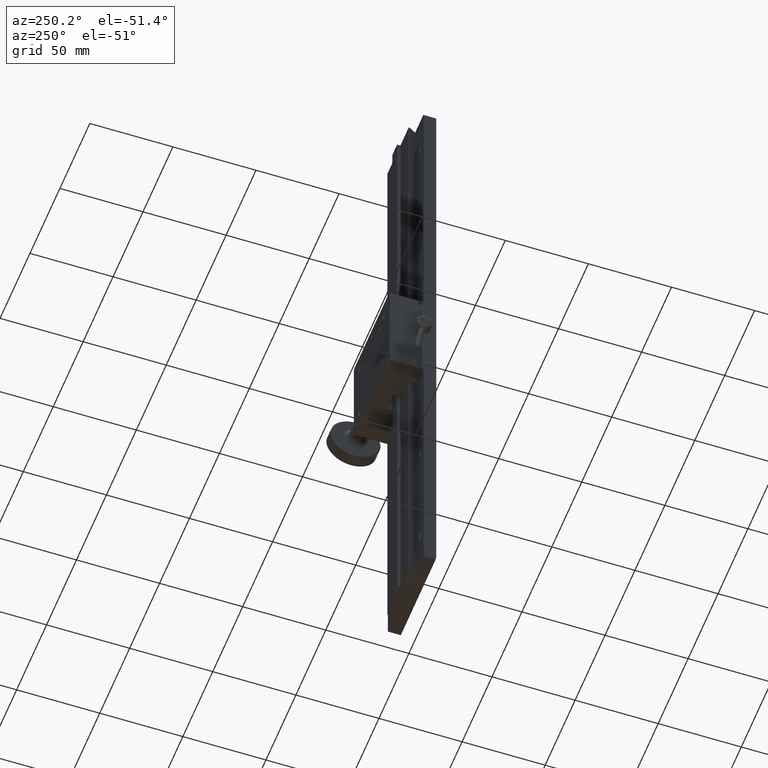
[diagram: clean part render]
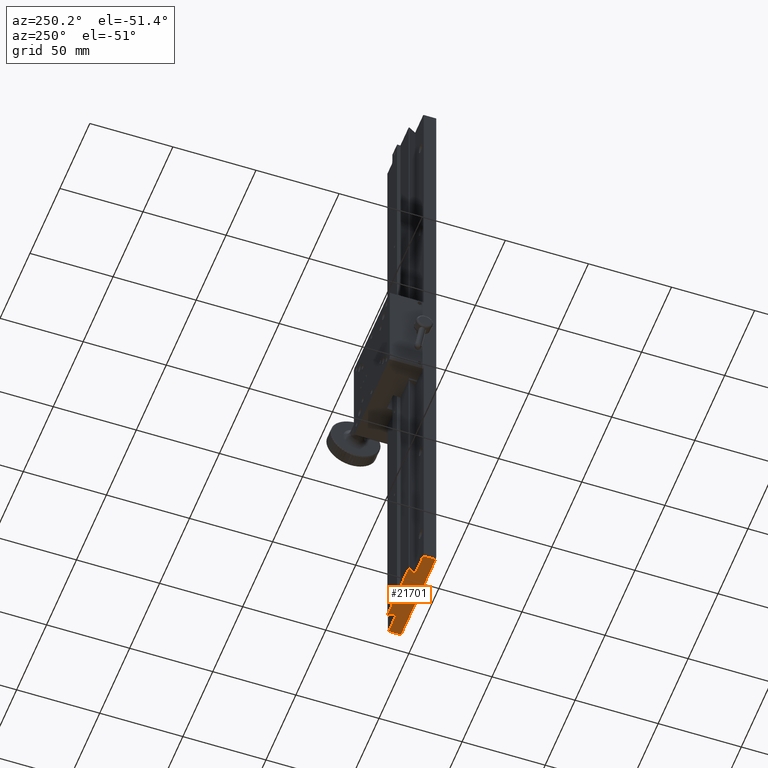
[diagram: same view with one face highlighted and labeled with its STEP entity id]
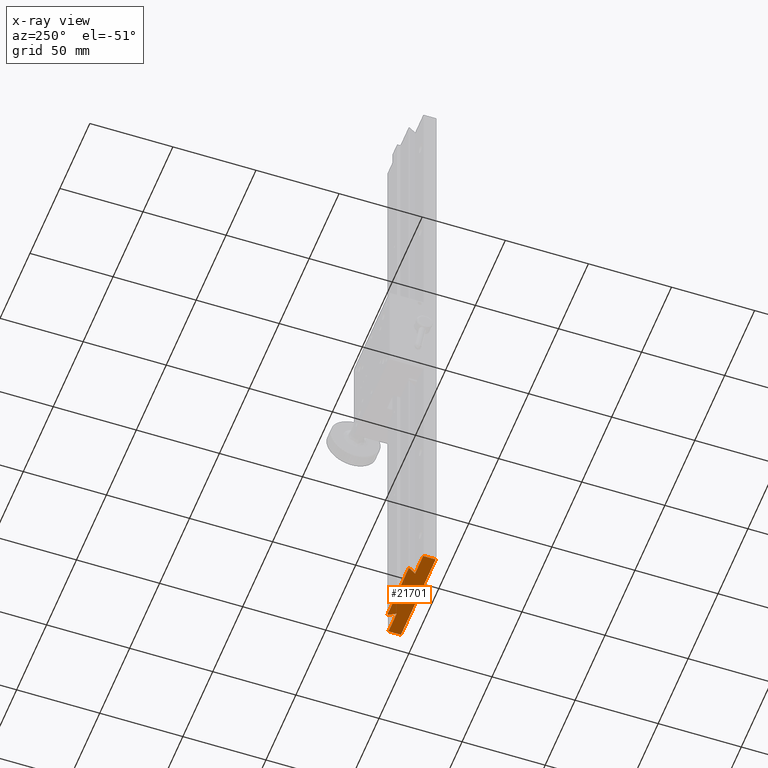
[diagram: x-ray of the same camera — body ghosted, the highlighted face saturated]
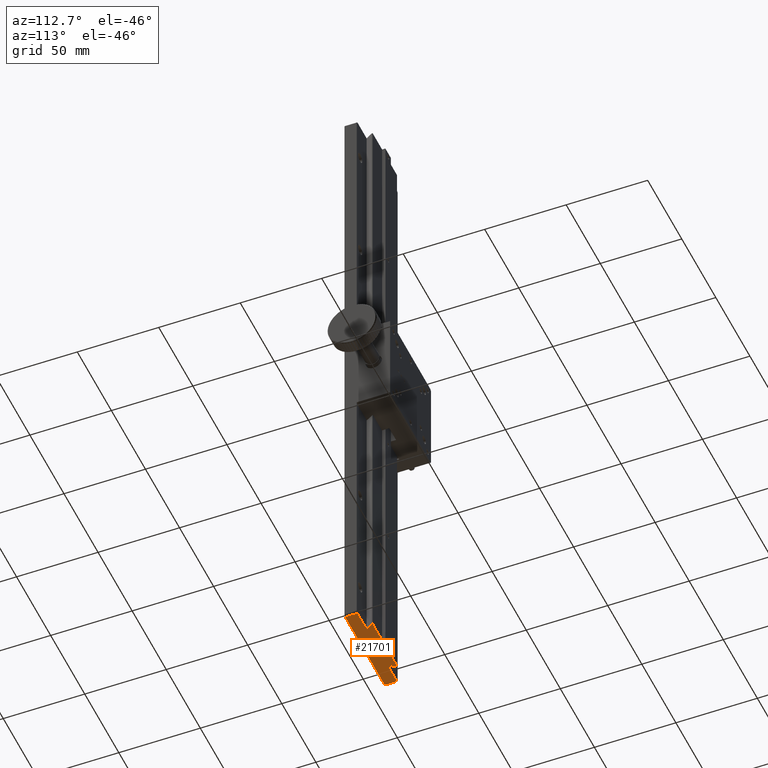
[diagram: same view with one face highlighted and labeled with its STEP entity id]
A machine part, auxiliary view. The second image highlights one B-rep face of the part: STEP entity #21701.
The next image is the same camera in x-ray: the body ghosted, the highlighted face saturated — about 0% of this face is hidden behind the body in this view.
A second angle (auxiliary view) of the same face is appended — the face is thin or edge-on in the first view.
In plain terms, the highlighted planar face has unit normal (0, 0, -1).
Its self-contained STEP definition (entity closure, byte-faithful):
#1143 = EDGE_CURVE ( 'NONE', #65314, #41020, #11615, .T. ) ;
#1891 = EDGE_CURVE ( 'NONE', #49394, #69719, #94724, .T. ) ;
#2124 = VERTEX_POINT ( 'NONE', #9956 ) ;
#2302 = LINE ( 'NONE', #10586, #11989 ) ;
#4373 = DIRECTION ( 'NONE',  ( 1.000000000000000000, -0.000000000000000000, 0.000000000000000000 ) ) ;
#5658 = VERTEX_POINT ( 'NONE', #49187 ) ;
#5901 = LINE ( 'NONE', #7936, #22911 ) ;
#6028 = LINE ( 'NONE', #29927, #80129 ) ;
#7471 = LINE ( 'NONE', #87010, #72973 ) ;
#7508 = PLANE ( 'NONE',  #13155 ) ;
#7936 = CARTESIAN_POINT ( 'NONE',  ( 64.50156960994755195, 64.60272800986781760, 13.82318078334728284 ) ) ;
#8017 = FACE_OUTER_BOUND ( 'NONE', #32323, .T. ) ;
#9956 = CARTESIAN_POINT ( 'NONE',  ( 93.50156960994750932, 57.10272800986790287, 13.82318078334727218 ) ) ;
#10586 = CARTESIAN_POINT ( 'NONE',  ( 64.50156960994755195, 64.60272800986749075, 13.82318078334728284 ) ) ;
#11614 = EDGE_CURVE ( 'NONE', #69385, #75428, #45467, .T. ) ;
#11615 = LINE ( 'NONE', #12125, #101265 ) ;
#11872 = VERTEX_POINT ( 'NONE', #92809 ) ;
#11984 = EDGE_CURVE ( 'NONE', #11872, #49394, #38183, .T. ) ;
#11989 = VECTOR ( 'NONE', #58412, 1000.000000000000000 ) ;
#12125 = CARTESIAN_POINT ( 'NONE',  ( 64.50156960994755195, 69.30272800986759307, 13.82318078334728284 ) ) ;
#13155 = AXIS2_PLACEMENT_3D ( 'NONE', #55832, #54291, #61602 ) ;
#13275 = ORIENTED_EDGE ( 'NONE', *, *, #1891, .T. ) ;
#13805 = EDGE_CURVE ( 'NONE', #60081, #65314, #7471, .T. ) ;
#14783 = ORIENTED_EDGE ( 'NONE', *, *, #88450, .T. ) ;
#15078 = CARTESIAN_POINT ( 'NONE',  ( 60.45156960994744111, 57.10272800986770392, 13.82318078334728284 ) ) ;
#15566 = CARTESIAN_POINT ( 'NONE',  ( 60.45156960994745532, 67.00272800986766697, 13.82318078334727041 ) ) ;
#15754 = DIRECTION ( 'NONE',  ( -6.982962677686266711E-15, 1.000000000000000000, 0.000000000000000000 ) ) ;
#16095 = CARTESIAN_POINT ( 'NONE',  ( 94.50156960994752353, 57.10272800986790998, 13.82318078334726685 ) ) ;
#16599 = VECTOR ( 'NONE', #30764, 1000.000000000000000 ) ;
#16619 = LINE ( 'NONE', #16095, #77558 ) ;
#17142 = CARTESIAN_POINT ( 'NONE',  ( 49.00156960994747379, 64.60272800986759023, 13.82318078334728284 ) ) ;
#19290 = CARTESIAN_POINT ( 'NONE',  ( 35.50156960994750222, 64.60272800986749075, 13.82318078334727396 ) ) ;
#19714 = CARTESIAN_POINT ( 'NONE',  ( 68.55156960994746385, 69.30272800986772097, 13.82318078334727041 ) ) ;
#20460 = LINE ( 'NONE', #50124, #86800 ) ;
#21038 = ORIENTED_EDGE ( 'NONE', *, *, #66612, .T. ) ;
#21701 = ADVANCED_FACE ( 'NONE', ( #8017 ), #7508, .T. ) ;
#22079 = CARTESIAN_POINT ( 'NONE',  ( 46.58802334475602436, 69.30272800986759307, 13.82318078334727751 ) ) ;
#22911 = VECTOR ( 'NONE', #39103, 1000.000000000000000 ) ;
#24399 = VECTOR ( 'NONE', #95664, 1000.000000000000000 ) ;
#25696 = ORIENTED_EDGE ( 'NONE', *, *, #13805, .T. ) ;
#25978 = CARTESIAN_POINT ( 'NONE',  ( 46.58802334475603146, 68.78311276759707482, 13.82318078334727751 ) ) ;
#28886 = VECTOR ( 'NONE', #29516, 1000.000000000000000 ) ;
#29010 = CARTESIAN_POINT ( 'NONE',  ( 82.41511587513878112, 69.30272800986782045, 13.82318078334728284 ) ) ;
#29516 = DIRECTION ( 'NONE',  ( 6.982962677686266711E-15, -1.000000000000000000, 0.000000000000000000 ) ) ;
#29927 = CARTESIAN_POINT ( 'NONE',  ( 93.50156960994749511, 57.10272800986770392, 13.82318078334728284 ) ) ;
#30764 = DIRECTION ( 'NONE',  ( 1.000000000000000000, -0.000000000000000000, 0.000000000000000000 ) ) ;
#31444 = ORIENTED_EDGE ( 'NONE', *, *, #69378, .T. ) ;
#31699 = DIRECTION ( 'NONE',  ( -1.000000000000000000, -6.982962677686266711E-15, 0.000000000000000000 ) ) ;
#32239 = LINE ( 'NONE', #73319, #52479 ) ;
#32323 = EDGE_LOOP ( 'NONE', ( #91472, #76357, #35956, #33079, #48420, #88746, #21038, #39206, #25696, #97972, #14783, #31444, #52265, #13275 ) ) ;
#33079 = ORIENTED_EDGE ( 'NONE', *, *, #68098, .T. ) ;
#35956 = ORIENTED_EDGE ( 'NONE', *, *, #100967, .T. ) ;
#36584 = CARTESIAN_POINT ( 'NONE',  ( 82.41511587513878112, 69.30272800986780624, 13.82318078334727751 ) ) ;
#37670 = DIRECTION ( 'NONE',  ( 0.000000000000000000, 1.000000000000000000, 0.000000000000000000 ) ) ;
#38183 = LINE ( 'NONE', #53285, #74521 ) ;
#38558 = CARTESIAN_POINT ( 'NONE',  ( 64.50156960994755195, 69.30272800986772097, 13.82318078334728284 ) ) ;
#39103 = DIRECTION ( 'NONE',  ( 1.000000000000000000, -0.000000000000000000, 0.000000000000000000 ) ) ;
#39206 = ORIENTED_EDGE ( 'NONE', *, *, #73733, .T. ) ;
#40012 = LINE ( 'NONE', #17142, #66963 ) ;
#41020 = VERTEX_POINT ( 'NONE', #91788 ) ;
#41052 = DIRECTION ( 'NONE',  ( -0.5000000000000187628, 0.8660254037844278274, 0.000000000000000000 ) ) ;
#43339 = CARTESIAN_POINT ( 'NONE',  ( 35.50156960994751643, 57.10272800986759734, 13.82318078334728639 ) ) ;
#45467 = LINE ( 'NONE', #71436, #61225 ) ;
#48340 = DIRECTION ( 'NONE',  ( -0.5000000000000073275, -0.8660254037844343777, 0.000000000000000000 ) ) ;
#48420 = ORIENTED_EDGE ( 'NONE', *, *, #87702, .T. ) ;
#49187 = CARTESIAN_POINT ( 'NONE',  ( 82.41511587513879533, 68.78311276759721693, 13.82318078334727751 ) ) ;
#49394 = VERTEX_POINT ( 'NONE', #19714 ) ;
#50124 = CARTESIAN_POINT ( 'NONE',  ( 64.50156960994755195, 67.00272800986766697, 13.82318078334728284 ) ) ;
#50800 = CARTESIAN_POINT ( 'NONE',  ( 80.00156960994748090, 64.60272800986783182, 13.82318078334727041 ) ) ;
#52265 = ORIENTED_EDGE ( 'NONE', *, *, #11984, .T. ) ;
#52479 = VECTOR ( 'NONE', #48340, 1000.000000000000114 ) ;
#53285 = CARTESIAN_POINT ( 'NONE',  ( 68.55156960994746385, 57.10272800986770392, 13.82318078334728284 ) ) ;
#54243 = CARTESIAN_POINT ( 'NONE',  ( 93.50156960994749511, 64.60272800986788866, 13.82318078334727929 ) ) ;
#54291 = DIRECTION ( 'NONE',  ( 0.000000000000000000, 0.000000000000000000, -1.000000000000000000 ) ) ;
#55832 = CARTESIAN_POINT ( 'NONE',  ( 64.50156960994755195, 57.10272800986770392, 13.82318078334728284 ) ) ;
#58412 = DIRECTION ( 'NONE',  ( 1.000000000000000000, -0.000000000000000000, 0.000000000000000000 ) ) ;
#59597 = EDGE_CURVE ( 'NONE', #5658, #83625, #32239, .T. ) ;
#60081 = VERTEX_POINT ( 'NONE', #25978 ) ;
#60957 = DIRECTION ( 'NONE',  ( 1.000000000000000000, -0.000000000000000000, 0.000000000000000000 ) ) ;
#61225 = VECTOR ( 'NONE', #70911, 1000.000000000000000 ) ;
#61602 = DIRECTION ( 'NONE',  ( -1.000000000000000000, 0.000000000000000000, -0.000000000000000000 ) ) ;
#65314 = VERTEX_POINT ( 'NONE', #22079 ) ;
#66612 = EDGE_CURVE ( 'NONE', #75428, #96852, #2302, .T. ) ;
#66963 = VECTOR ( 'NONE', #41052, 1000.000000000000000 ) ;
#68098 = EDGE_CURVE ( 'NONE', #91823, #2124, #6028, .T. ) ;
#69378 = EDGE_CURVE ( 'NONE', #77710, #11872, #20460, .T. ) ;
#69385 = VERTEX_POINT ( 'NONE', #43339 ) ;
#69719 = VERTEX_POINT ( 'NONE', #36584 ) ;
#70911 = DIRECTION ( 'NONE',  ( 0.000000000000000000, 1.000000000000000000, 0.000000000000000000 ) ) ;
#71436 = CARTESIAN_POINT ( 'NONE',  ( 35.50156960994753064, 57.10272800986770392, 13.82318078334728284 ) ) ;
#72973 = VECTOR ( 'NONE', #15754, 1000.000000000000000 ) ;
#73319 = CARTESIAN_POINT ( 'NONE',  ( 82.41511587513878112, 68.78311276759717430, 13.82318078334728284 ) ) ;
#73733 = EDGE_CURVE ( 'NONE', #96852, #60081, #40012, .T. ) ;
#74521 = VECTOR ( 'NONE', #37670, 1000.000000000000000 ) ;
#75428 = VERTEX_POINT ( 'NONE', #19290 ) ;
#76357 = ORIENTED_EDGE ( 'NONE', *, *, #59597, .T. ) ;
#77558 = VECTOR ( 'NONE', #31699, 1000.000000000000000 ) ;
#77710 = VERTEX_POINT ( 'NONE', #15566 ) ;
#78603 = EDGE_CURVE ( 'NONE', #69719, #5658, #99764, .T. ) ;
#80129 = VECTOR ( 'NONE', #101698, 1000.000000000000000 ) ;
#83625 = VERTEX_POINT ( 'NONE', #50800 ) ;
#86324 = LINE ( 'NONE', #15078, #24399 ) ;
#86800 = VECTOR ( 'NONE', #4373, 1000.000000000000000 ) ;
#87010 = CARTESIAN_POINT ( 'NONE',  ( 46.58802334475602436, 69.30272800986759307, 13.82318078334728284 ) ) ;
#87702 = EDGE_CURVE ( 'NONE', #2124, #69385, #16619, .T. ) ;
#88450 = EDGE_CURVE ( 'NONE', #41020, #77710, #86324, .T. ) ;
#88746 = ORIENTED_EDGE ( 'NONE', *, *, #11614, .T. ) ;
#90955 = CARTESIAN_POINT ( 'NONE',  ( 49.00156960994748800, 64.60272800986757602, 13.82318078334727041 ) ) ;
#91472 = ORIENTED_EDGE ( 'NONE', *, *, #78603, .T. ) ;
#91788 = CARTESIAN_POINT ( 'NONE',  ( 60.45156960994744111, 69.30272800986763571, 13.82318078334727041 ) ) ;
#91823 = VERTEX_POINT ( 'NONE', #54243 ) ;
#92809 = CARTESIAN_POINT ( 'NONE',  ( 68.55156960994746385, 67.00272800986797961, 13.82318078334727041 ) ) ;
#94724 = LINE ( 'NONE', #38558, #16599 ) ;
#95664 = DIRECTION ( 'NONE',  ( -0.000000000000000000, -1.000000000000000000, -0.000000000000000000 ) ) ;
#96852 = VERTEX_POINT ( 'NONE', #90955 ) ;
#97972 = ORIENTED_EDGE ( 'NONE', *, *, #1143, .T. ) ;
#99764 = LINE ( 'NONE', #29010, #28886 ) ;
#100967 = EDGE_CURVE ( 'NONE', #83625, #91823, #5901, .T. ) ;
#101265 = VECTOR ( 'NONE', #60957, 1000.000000000000000 ) ;
#101698 = DIRECTION ( 'NONE',  ( -0.000000000000000000, -1.000000000000000000, -0.000000000000000000 ) ) ;